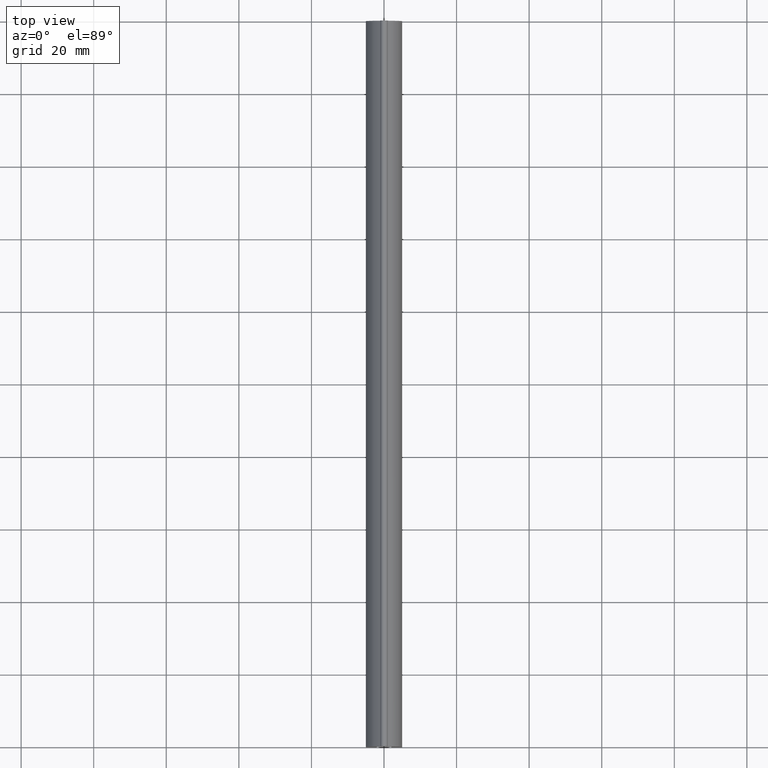
[diagram: clean part render]
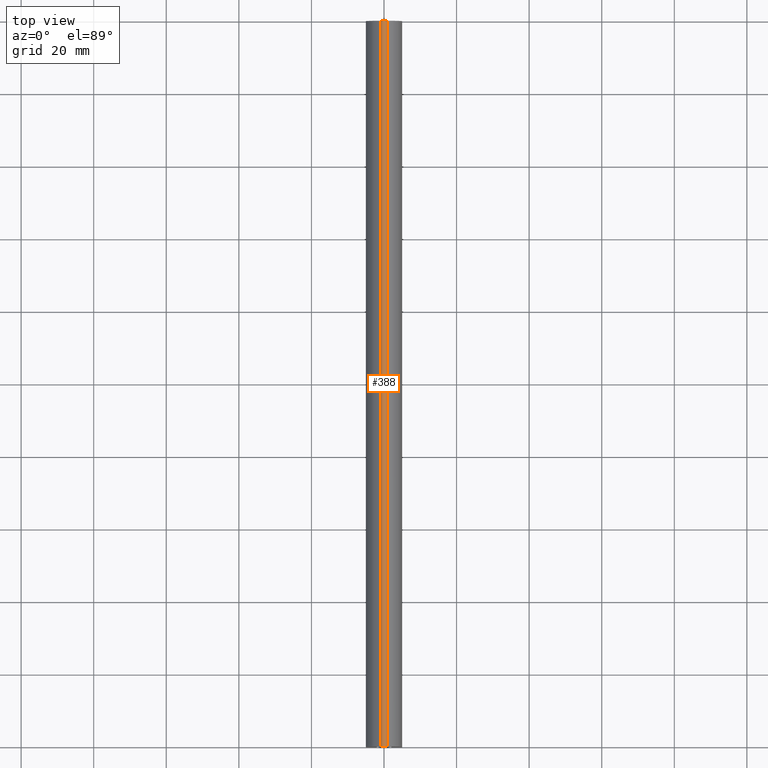
[diagram: same view with one face highlighted and labeled with its STEP entity id]
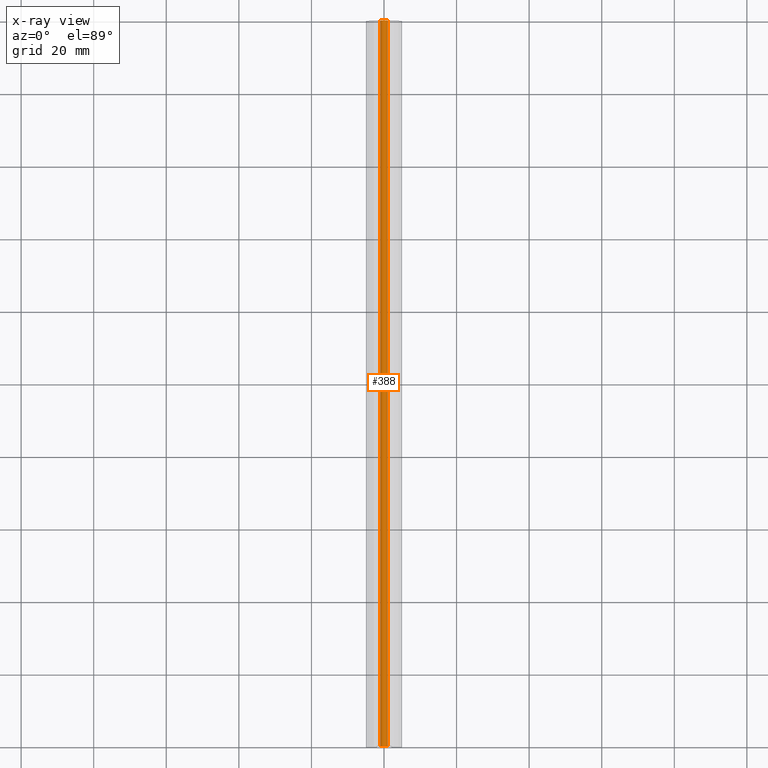
[diagram: x-ray of the same camera — body ghosted, the highlighted face saturated]
A machine part, top view. The second image highlights one B-rep face of the part: STEP entity #388.
The next image is the same camera in x-ray: the body ghosted, the highlighted face saturated — about 0% of this face is hidden behind the body in this view.
In plain terms, the highlighted face is a freeform B-spline surface patch.
Its self-contained STEP definition (entity closure, byte-faithful):
#160=CARTESIAN_POINT('',(1.0,0.0,-1.0));
#161=VERTEX_POINT('',#160);
#167=CARTESIAN_POINT('',(-1.0,0.0,-1.0));
#168=VERTEX_POINT('',#167);
#169=CARTESIAN_POINT('',(1.0,0.0,-1.0));
#170=CARTESIAN_POINT('',(1.0,0.0,0.0));
#171=CARTESIAN_POINT('',(0.0,0.0,0.0));
#172=CARTESIAN_POINT('',(-1.0,0.0,0.0));
#173=CARTESIAN_POINT('',(-1.0,0.0,-1.0));
#181=(BOUNDED_CURVE()B_SPLINE_CURVE(2,(#169,#170,#171,#172,#173),.UNSPECIFIED.,.F.,.U.)B_SPLINE_CURVE_WITH_KNOTS((3,2,3),(0.0,0.500000000000000,1.0),.UNSPECIFIED.)CURVE()GEOMETRIC_REPRESENTATION_ITEM()RATIONAL_B_SPLINE_CURVE((1.0,0.707106781186548,1.0,0.707106781186548,1.0))REPRESENTATION_ITEM(''));
#182=EDGE_CURVE('',#161,#168,#181,.T.);
#214=CARTESIAN_POINT('',(-1.0,200.0,-1.0));
#215=VERTEX_POINT('',#214);
#221=CARTESIAN_POINT('',(1.0,200.0,-1.0));
#222=VERTEX_POINT('',#221);
#223=CARTESIAN_POINT('',(1.0,200.0,-1.0));
#224=CARTESIAN_POINT('',(1.0,200.0,0.0));
#225=CARTESIAN_POINT('',(0.0,200.0,0.0));
#226=CARTESIAN_POINT('',(-1.0,200.0,0.0));
#227=CARTESIAN_POINT('',(-1.0,200.0,-1.0));
#235=(BOUNDED_CURVE()B_SPLINE_CURVE(2,(#223,#224,#225,#226,#227),.UNSPECIFIED.,.F.,.U.)B_SPLINE_CURVE_WITH_KNOTS((3,2,3),(0.0,0.500000000000000,1.0),.UNSPECIFIED.)CURVE()GEOMETRIC_REPRESENTATION_ITEM()RATIONAL_B_SPLINE_CURVE((1.0,0.707106781186548,1.0,0.707106781186548,1.0))REPRESENTATION_ITEM(''));
#236=EDGE_CURVE('',#222,#215,#235,.T.);
#346=CARTESIAN_POINT('',(-1.0,200.0,-1.0));
#347=CARTESIAN_POINT('',(-1.0,0.0,-1.0));
#348=QUASI_UNIFORM_CURVE('',1,(#346,#347),.UNSPECIFIED.,.F.,.U.);
#349=EDGE_CURVE('',#215,#168,#348,.T.);
#360=CARTESIAN_POINT('',(-0.999657324975557,205.0,-1.026176948307875));
#361=CARTESIAN_POINT('',(-0.999657324975557,-5.125000000000000,-1.026176948307875));
#362=CARTESIAN_POINT('',(-1.027242072842902,205.000000000000030,0.027242072842899));
#363=CARTESIAN_POINT('',(-1.027242072842902,-5.124999999999999,0.027242072842899));
#364=CARTESIAN_POINT('',(0.026176948307872,205.0,-0.000342675024443));
#365=CARTESIAN_POINT('',(0.026176948307872,-5.125000000000000,-0.000342675024443));
#366=CARTESIAN_POINT('',(1.079595969458645,205.000000000000030,-0.027927422891785));
#367=CARTESIAN_POINT('',(1.079595969458645,-5.124999999999999,-0.027927422891785));
#368=CARTESIAN_POINT('',(0.996917333733128,205.0,-1.078459095727844));
#369=CARTESIAN_POINT('',(0.996917333733128,-5.125000000000000,-1.078459095727844));
#377=(BOUNDED_SURFACE()B_SPLINE_SURFACE(1,2,((#360,#362,#364,#366,#368),(#361,#363,#365,#367,#369)),.UNSPECIFIED.,.F.,.F.,.U.)B_SPLINE_SURFACE_WITH_KNOTS((2,2),(3,2,3),(0.0,210.125000000000110),(0.0,1.0,2.0),.UNSPECIFIED.)GEOMETRIC_REPRESENTATION_ITEM()RATIONAL_B_SPLINE_SURFACE(((1.0,0.688354575693754,1.0,0.688354575693754,1.0),(1.0,0.688354575693754,1.0,0.688354575693754,1.0)))REPRESENTATION_ITEM('')SURFACE());
#378=ORIENTED_EDGE('',*,*,#182,.F.);
#379=CARTESIAN_POINT('',(1.0,200.0,-1.0));
#380=CARTESIAN_POINT('',(1.0,0.0,-1.0));
#381=QUASI_UNIFORM_CURVE('',1,(#379,#380),.UNSPECIFIED.,.F.,.U.);
#382=EDGE_CURVE('',#222,#161,#381,.T.);
#383=ORIENTED_EDGE('',*,*,#382,.F.);
#384=ORIENTED_EDGE('',*,*,#236,.T.);
#385=ORIENTED_EDGE('',*,*,#349,.T.);
#386=EDGE_LOOP('',(#378,#383,#384,#385));
#387=FACE_OUTER_BOUND('',#386,.T.);
#388=ADVANCED_FACE('',(#387),#377,.T.);